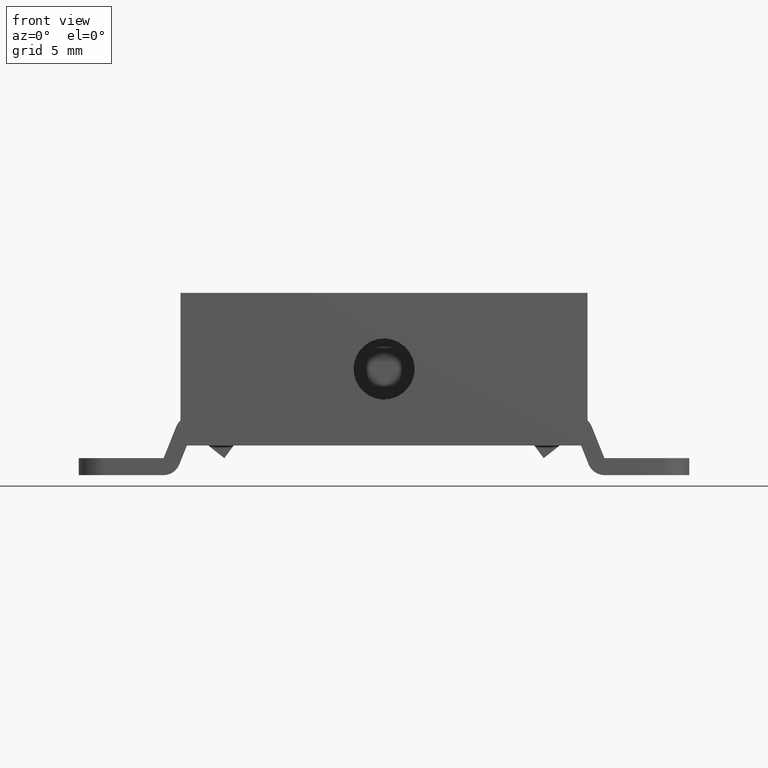
[diagram: clean part render]
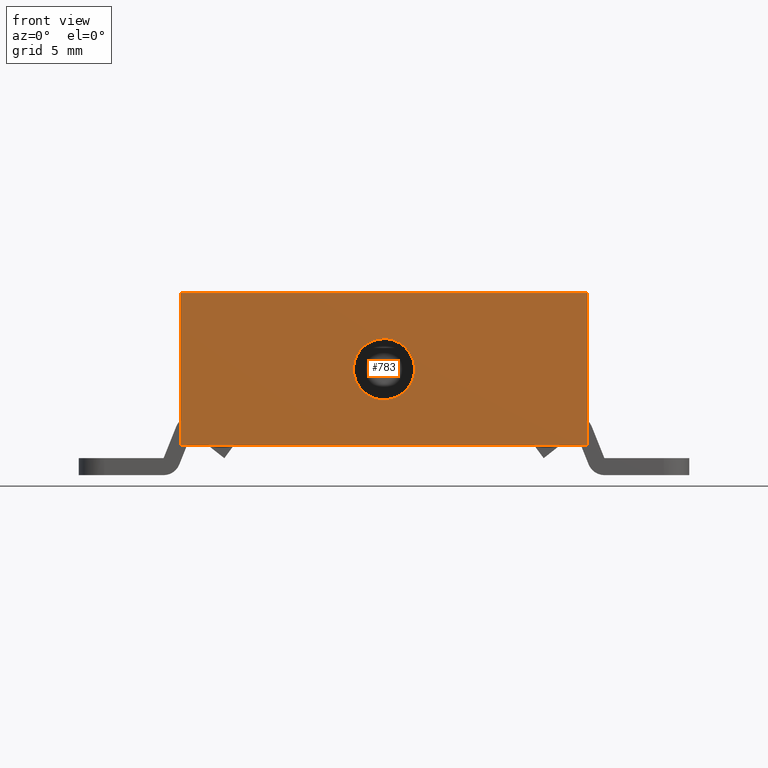
[diagram: same view with one face highlighted and labeled with its STEP entity id]
A machine part, front view. The second image highlights one B-rep face of the part: STEP entity #783.
In plain terms, the highlighted face is a freeform B-spline surface patch.
Its self-contained STEP definition (entity closure, byte-faithful):
#637=CARTESIAN_POINT('',(1.787417147453704,-12.199975999999999,6.037538377610298));
#638=VERTEX_POINT('',#637);
#644=CARTESIAN_POINT('',(0.0,-12.199975999999999,8.050000000000001));
#645=VERTEX_POINT('',#644);
#646=CARTESIAN_POINT('',(1.787417147453704,-12.199976000000003,6.037538377610298));
#647=CARTESIAN_POINT('',(1.800000000000000,-12.199975999999999,6.143396584618946));
#648=CARTESIAN_POINT('',(1.800000000000000,-12.199975999999999,6.250000000000000));
#649=CARTESIAN_POINT('',(1.800000000000001,-12.199976000000001,8.050000000000001));
#650=CARTESIAN_POINT('',(0.0,-12.199975999999999,8.050000000000001));
#658=(BOUNDED_CURVE()B_SPLINE_CURVE(2,(#646,#647,#648,#649,#650),.UNSPECIFIED.,.F.,.U.)B_SPLINE_CURVE_WITH_KNOTS((3,2,3),(0.229562473514219,0.250000000000000,0.500000000000000),.UNSPECIFIED.)CURVE()GEOMETRIC_REPRESENTATION_ITEM()RATIONAL_B_SPLINE_CURVE((0.956026754185093,0.976055948331978,1.0,0.707106781186547,1.0))REPRESENTATION_ITEM(''));
#659=EDGE_CURVE('',#638,#645,#658,.T.);
#661=CARTESIAN_POINT('',(-1.796642637155494,-12.199975999999999,6.359887371225951));
#662=VERTEX_POINT('',#661);
#663=CARTESIAN_POINT('',(0.0,-12.199975999999999,8.050000000000001));
#664=CARTESIAN_POINT('',(-1.693270920310890,-12.199976000000001,8.050000000000001));
#665=CARTESIAN_POINT('',(-1.796642637155495,-12.199976000000001,6.359887371225951));
#673=(BOUNDED_CURVE()B_SPLINE_CURVE(2,(#663,#664,#665),.UNSPECIFIED.,.F.,.U.)B_SPLINE_CURVE_WITH_KNOTS((3,3),(0.500000000000000,0.739332962229828),.UNSPECIFIED.)CURVE()GEOMETRIC_REPRESENTATION_ITEM()RATIONAL_B_SPLINE_CURVE((1.0,0.719603993297389,0.976072041647183))REPRESENTATION_ITEM(''));
#674=EDGE_CURVE('',#645,#662,#673,.T.);
#708=CARTESIAN_POINT('',(0.0,-12.199975999999999,4.450000000000001));
#709=VERTEX_POINT('',#708);
#710=CARTESIAN_POINT('',(-1.796642637155495,-12.199975999999999,6.359887371225951));
#711=CARTESIAN_POINT('',(-1.800000000000001,-12.199976000000001,6.304994974000844));
#712=CARTESIAN_POINT('',(-1.800000000000000,-12.199975999999999,6.250000000000000));
#713=CARTESIAN_POINT('',(-1.800000000000001,-12.199976000000001,4.450000000000001));
#714=CARTESIAN_POINT('',(0.0,-12.199975999999999,4.450000000000001));
#722=(BOUNDED_CURVE()B_SPLINE_CURVE(2,(#710,#711,#712,#713,#714),.UNSPECIFIED.,.F.,.U.)B_SPLINE_CURVE_WITH_KNOTS((3,2,3),(0.739332962229828,0.750000000000000,1.0),.UNSPECIFIED.)CURVE()GEOMETRIC_REPRESENTATION_ITEM()RATIONAL_B_SPLINE_CURVE((0.976072041647182,0.987502787889158,1.0,0.707106781186547,1.0))REPRESENTATION_ITEM(''));
#723=EDGE_CURVE('',#662,#709,#722,.T.);
#725=CARTESIAN_POINT('',(0.0,-12.199975999999999,4.450000000000001));
#726=CARTESIAN_POINT('',(1.598714146698887,-12.199976000000001,4.450000000000002));
#727=CARTESIAN_POINT('',(1.787417147453703,-12.199976000000001,6.037538377610298));
#735=(BOUNDED_CURVE()B_SPLINE_CURVE(2,(#725,#726,#727),.UNSPECIFIED.,.F.,.U.)B_SPLINE_CURVE_WITH_KNOTS((3,3),(0.0,0.229562473514219),.UNSPECIFIED.)CURVE()GEOMETRIC_REPRESENTATION_ITEM()RATIONAL_B_SPLINE_CURVE((1.0,0.731050832854570,0.956026754185093))REPRESENTATION_ITEM(''));
#736=EDGE_CURVE('',#709,#638,#735,.T.);
#742=CARTESIAN_POINT('',(-13.198799953483350,-12.199975999999999,11.199549982556260));
#743=CARTESIAN_POINT('',(13.198800597213509,-12.199975999999999,11.199549982556260));
#744=CARTESIAN_POINT('',(-13.198799953483350,-12.199975999999999,1.300449776044831));
#745=CARTESIAN_POINT('',(13.198800597213509,-12.199975999999999,1.300449776044831));
#746=B_SPLINE_SURFACE_WITH_KNOTS('',1,1,((#742,#744),(#743,#745)),.UNSPECIFIED.,.F.,.F.,.U.,(2,2),(2,2),(0.0,26.397600550696851),(0.0,9.899100206511427),.UNSPECIFIED.);
#747=CARTESIAN_POINT('',(12.0,-12.199975999999999,1.749999999999900));
#748=VERTEX_POINT('',#747);
#749=CARTESIAN_POINT('',(12.0,-12.199975999999999,10.750000000000000));
#750=VERTEX_POINT('',#749);
#751=CARTESIAN_POINT('',(12.0,-12.199975999999999,1.749999999999900));
#752=CARTESIAN_POINT('',(12.0,-12.199975999999999,10.750000000000000));
#753=QUASI_UNIFORM_CURVE('',1,(#751,#752),.UNSPECIFIED.,.F.,.U.);
#754=EDGE_CURVE('',#748,#750,#753,.T.);
#755=ORIENTED_EDGE('',*,*,#754,.T.);
#756=CARTESIAN_POINT('',(-12.0,-12.199975999999999,10.750000000000000));
#757=VERTEX_POINT('',#756);
#758=CARTESIAN_POINT('',(12.0,-12.199975999999999,10.750000000000000));
#759=CARTESIAN_POINT('',(-12.0,-12.199975999999999,10.750000000000000));
#760=QUASI_UNIFORM_CURVE('',1,(#758,#759),.UNSPECIFIED.,.F.,.U.);
#761=EDGE_CURVE('',#750,#757,#760,.T.);
#762=ORIENTED_EDGE('',*,*,#761,.T.);
#763=CARTESIAN_POINT('',(-12.0,-12.199975999999999,1.749999999999900));
#764=VERTEX_POINT('',#763);
#765=CARTESIAN_POINT('',(-12.0,-12.199975999999999,10.750000000000000));
#766=CARTESIAN_POINT('',(-12.0,-12.199975999999999,1.749999999999900));
#767=QUASI_UNIFORM_CURVE('',1,(#765,#766),.UNSPECIFIED.,.F.,.U.);
#768=EDGE_CURVE('',#757,#764,#767,.T.);
#769=ORIENTED_EDGE('',*,*,#768,.T.);
#770=CARTESIAN_POINT('',(-12.0,-12.199975999999999,1.749999999999900));
#771=CARTESIAN_POINT('',(12.0,-12.199975999999999,1.749999999999900));
#772=QUASI_UNIFORM_CURVE('',1,(#770,#771),.UNSPECIFIED.,.F.,.U.);
#773=EDGE_CURVE('',#764,#748,#772,.T.);
#774=ORIENTED_EDGE('',*,*,#773,.T.);
#775=EDGE_LOOP('',(#755,#762,#769,#774));
#776=FACE_OUTER_BOUND('',#775,.T.);
#777=ORIENTED_EDGE('',*,*,#674,.F.);
#778=ORIENTED_EDGE('',*,*,#659,.F.);
#779=ORIENTED_EDGE('',*,*,#736,.F.);
#780=ORIENTED_EDGE('',*,*,#723,.F.);
#781=EDGE_LOOP('',(#777,#778,#779,#780));
#782=FACE_BOUND('',#781,.T.);
#783=ADVANCED_FACE('',(#776,#782),#746,.F.);